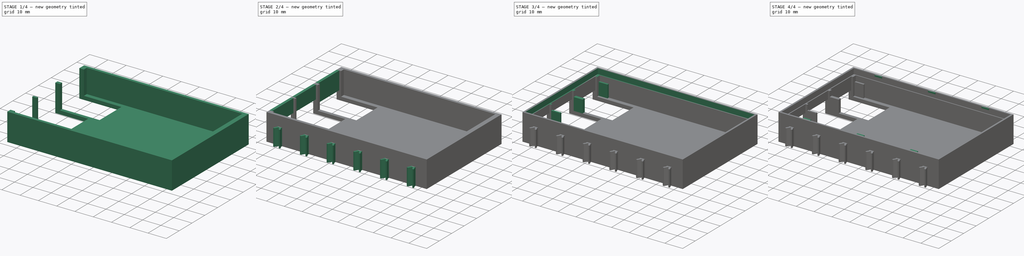
[diagram: build sequence overview — one tinted view per stage of 4, left to right]
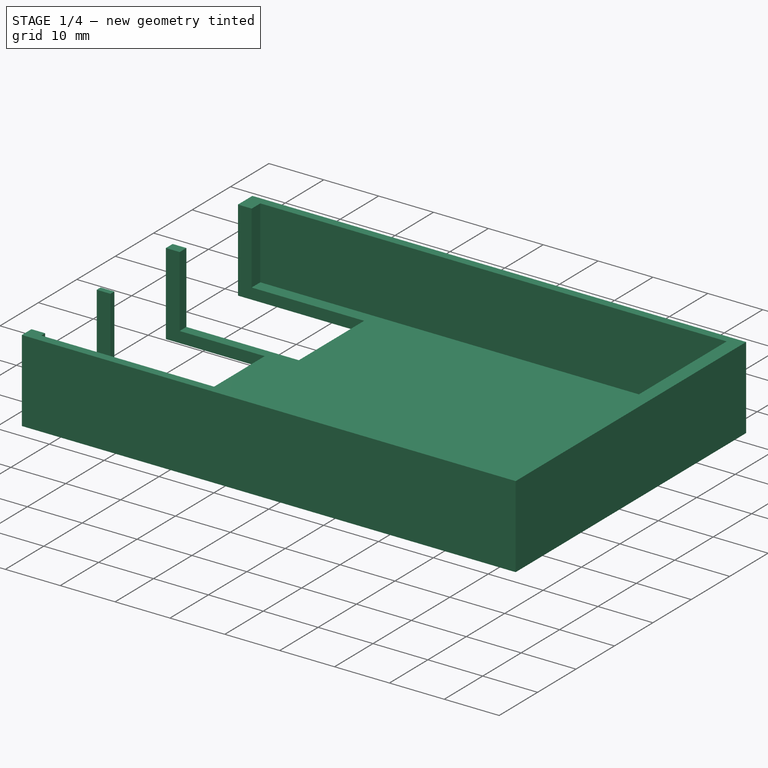
[diagram: stage 1 of 4 — iso view after this stage's code; geometry added in this stage tinted green]
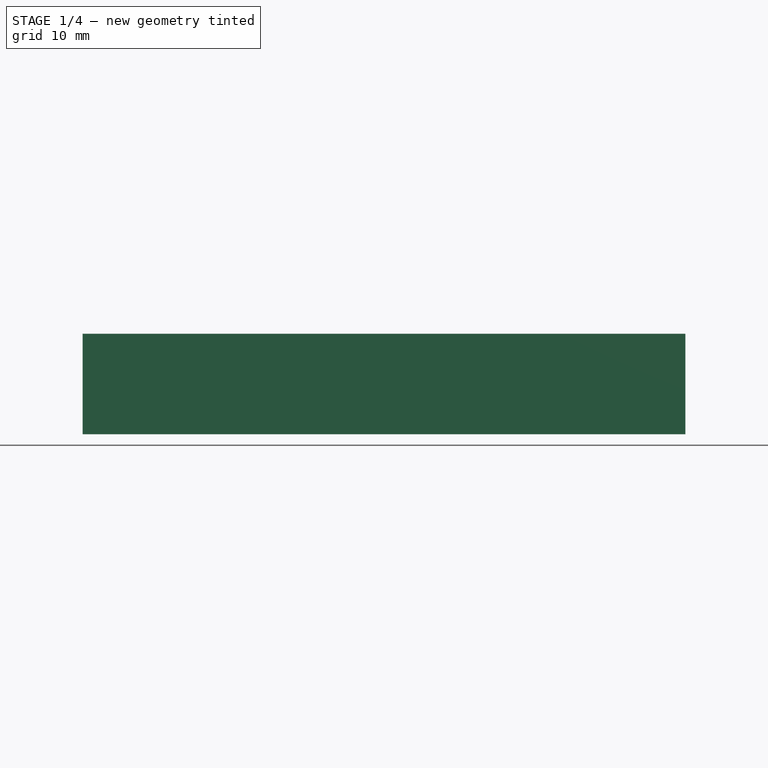
[diagram: stage 1 of 4 — front view after this stage's code; geometry added in this stage tinted green]
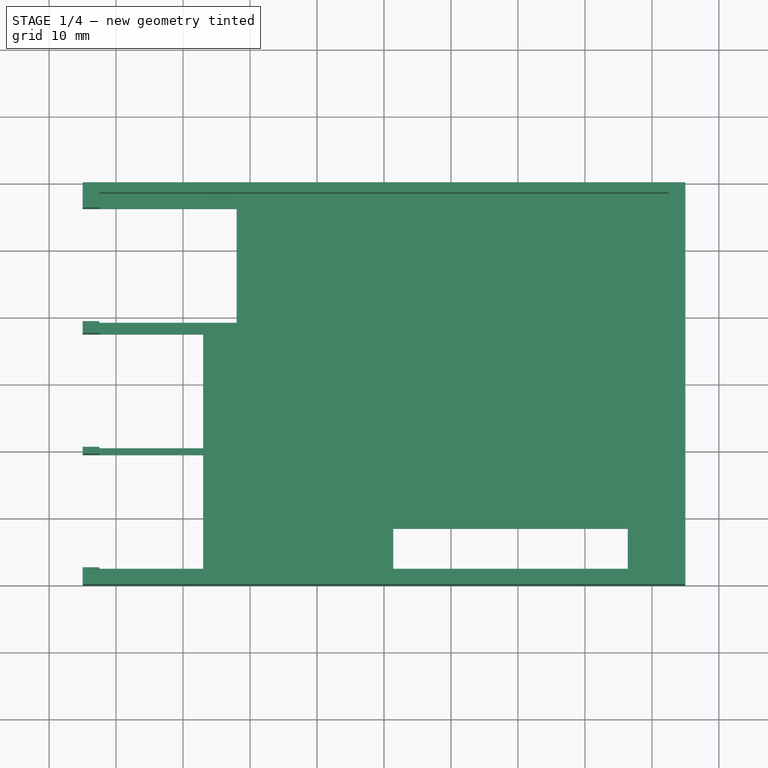
[diagram: stage 1 of 4 — top view after this stage's code; geometry added in this stage tinted green]
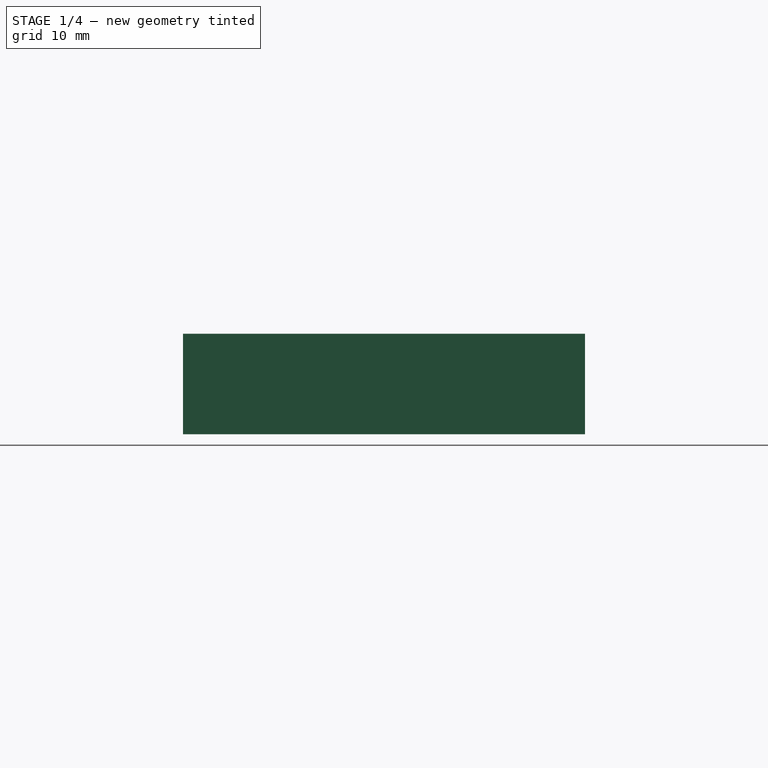
[diagram: stage 1 of 4 — right view after this stage's code; geometry added in this stage tinted green]
FCSTD DOCUMENT  (FreeCAD 0.16R6707 (Git))
Label: display32_bottom
License: All rights reserved
LicenseURL: http://en.wikipedia.org/wiki/All_rights_reserved
objects: Sketcher::SketchObject×9, PartDesign::Pad×7, PartDesign::Pocket×2, PartDesign::Mirrored×1, PartDesign::LinearPattern×1, PartDesign::MultiTransform×1
note: 30 computed .brp shape members not serialized (recipe doc carries the construction recipe); baked Part::Feature solids carry a one-line shape summary decoded from their .brp

FEATURE [Sketcher::SketchObject] Sketch
  sketch-geometry (30):
    g0: LineSegment StartX=-45 StartY=30 StartZ=0 EndX=45 EndY=30 EndZ=0
    g1: LineSegment StartX=45 StartY=30 StartZ=0 EndX=45 EndY=-30 EndZ=0
    g2: LineSegment StartX=45 StartY=-30 StartZ=0 EndX=-45 EndY=-30 EndZ=0
    g3: LineSegment StartX=-45 StartY=-30 StartZ=0 EndX=-45 EndY=-27.5 EndZ=0
    g4: LineSegment StartX=-45 StartY=-27.5 StartZ=0 EndX=-27 EndY=-27.5 EndZ=0
    g5: LineSegment StartX=-27 StartY=-27.5 StartZ=0 EndX=-27 EndY=-10.5 EndZ=0
    g6: LineSegment StartX=-27 StartY=-10.5 StartZ=0 EndX=-45 EndY=-10.5 EndZ=0
    g7: LineSegment StartX=-45 StartY=-10.5 StartZ=0 EndX=-45 EndY=-9.5 EndZ=0
    g8: LineSegment StartX=-45 StartY=-9.5 StartZ=0 EndX=-27 EndY=-9.5 EndZ=0
    g9: LineSegment StartX=-27 StartY=-9.5 StartZ=0 EndX=-27 EndY=7.5 EndZ=0
    g10: LineSegment StartX=-27 StartY=7.5 StartZ=0 EndX=-45 EndY=7.5 EndZ=0
    g11: LineSegment StartX=-45 StartY=7.5 StartZ=0 EndX=-45 EndY=9.25 EndZ=0
    g12: LineSegment StartX=-45 StartY=9.25 StartZ=0 EndX=-22 EndY=9.25 EndZ=0
    g13: LineSegment StartX=-22 StartY=9.25 StartZ=0 EndX=-22 EndY=26.25 EndZ=0
    g14: LineSegment StartX=-22 StartY=26.25 StartZ=0 EndX=-45 EndY=26.25 EndZ=0
    g15: LineSegment StartX=-45 StartY=26.25 StartZ=0 EndX=-45 EndY=30 EndZ=0
    g16: LineSegment [constr] StartX=-45 StartY=26.25 StartZ=0 EndX=-45 EndY=9.25 EndZ=0
    g17: LineSegment [constr] StartX=-27 StartY=-9.5 StartZ=0 EndX=-27 EndY=-10.5 EndZ=0
    g18: LineSegment [constr] StartX=-45 StartY=7.5 StartZ=0 EndX=-45 EndY=-9.5 EndZ=0
    g19: LineSegment [constr] StartX=-45 StartY=-10.5 StartZ=0 EndX=-45 EndY=-27.5 EndZ=0
    g20: GeomPoint [constr] X=-45 Y=-19 Z=0
    g21: GeomPoint [constr] X=-45 Y=-1 Z=0
    g22: GeomPoint [constr] X=-45 Y=17.75 Z=0
    g23: LineSegment StartX=1.39 StartY=-21.5 StartZ=0 EndX=36.39 EndY=-21.5 EndZ=0
    g24: LineSegment StartX=36.39 StartY=-21.5 StartZ=0 EndX=36.39 EndY=-27.5 EndZ=0
    g25: LineSegment StartX=36.39 StartY=-27.5 StartZ=0 EndX=1.39 EndY=-27.5 EndZ=0
    g26: LineSegment StartX=1.39 StartY=-27.5 StartZ=0 EndX=1.39 EndY=-21.5 EndZ=0
    g27: GeomPoint [constr] X=18.89 Y=-27.5 Z=0
    g28: GeomPoint [constr] X=36.39 Y=-24.5 Z=0
    g29: GeomPoint [constr] X=-45 Y=28 Z=0
  constraints (80):
    c: Horizontal(g0)
    c: Coincident(g0,g1)
    c: Vertical(g1)
    c: Coincident(g1,g2)
    c: Horizontal(g2)
    c: Coincident(g2,g3)
    c: Vertical(g3)
    c: Coincident(g3,g4)
    c: Horizontal(g4)
    c: Coincident(g4,g5)
    c: Vertical(g5)
    c: Coincident(g5,g6)
    c: Horizontal(g6)
    c: Coincident(g6,g7)
    c: Coincident(g7,g8)
    c: Horizontal(g8)
    c: Coincident(g8,g9)
    c: Vertical(g9)
    c: Coincident(g9,g10)
    c: Horizontal(g10)
    c: Coincident(g10,g11)
    c: Vertical(g11)
    c: Coincident(g11,g12)
    c: Horizontal(g12)
    c: Coincident(g12,g13)
    c: Vertical(g13)
    c: Coincident(g13,g14)
    c: Horizontal(g14)
    c: Coincident(g14,g15)
    c: Coincident(g15,g0)
    c: Vertical(g15)
    c: Coincident(g16,g14)
    c: Coincident(g16,g11)
    c: Coincident(g17,g8)
    c: Coincident(g17,g5)
    c: Coincident(g18,g10)
    c: Coincident(g18,g7)
    c: Coincident(g19,g6)
    c: Coincident(g19,g3)
    c: Vertical(g19)
    c: Vertical(g18)
    c: Vertical(g16)
    c: Vertical(g7)
    c: Vertical(g17)
    c: DistanceY(g7,g10) = 17
    c: DistanceY(g3,g6) = 17
    c: DistanceY(g11,g14) = 17
    c: DistanceX(g0,g0) = 90
    c: DistanceX(g10,g9) = 18
    c: DistanceX(g14,g13) = 23
    c: PointOnObject(g20,g19)
    c: PointOnObject(g21,g18)
    c: PointOnObject(g22,g16)
    c: Symmetric(g11,g14,g22)
    c: Symmetric(g10,g7,g21)
    c: Symmetric(g6,g3,g20)
    c: DistanceY(g1,g0) = 60
    c: Symmetric(g0,g0,g-2)
    c: Symmetric(g0,g1,g-1)
    c: Coincident(g23,g24)
    c: Coincident(g24,g25)
    c: Coincident(g25,g26)
    c: Coincident(g26,g23)
    c: Horizontal(g23)
    c: Horizontal(g25)
    c: Vertical(g24)
    c: Vertical(g26)
    c: PointOnObject(g27,g25)
    c: PointOnObject(g28,g24)
    c: Symmetric(g25,g24,g27)
    c: Symmetric(g23,g24,g28)
    c: DistanceX(g23,g23) = 35
    c: DistanceY(g25,g23) = 6
    c: DistanceY(g1,g28) = 5.5
    c: DistanceX(g27,g1) = 26.11
    c: PointOnObject(g29,g15)
    c: DistanceY(g29,g0) = 2
    c: DistanceY(g22,g29) = 10.25
    c: DistanceY(g21,g29) = 29
    c: DistanceY(g20,g29) = 47
FEATURE [PartDesign::Pad] Pad
  Length = 2
  Length2 = 100
  Sketch = -> Sketch
  Type = 0
FEATURE [Sketcher::SketchObject] Sketch001
  Placement = pos=(0,0,2) rot=(0,0,1;0rad)
  Support = -> Pad [Face22]
  sketch-geometry (30):
    g0: LineSegment StartX=-45 StartY=30 StartZ=0 EndX=45 EndY=30 EndZ=0
    g1: LineSegment StartX=45 StartY=30 StartZ=0 EndX=45 EndY=-30 EndZ=0
    g2: LineSegment StartX=45 StartY=-30 StartZ=0 EndX=-45 EndY=-30 EndZ=0
    g3: LineSegment StartX=-45 StartY=-30 StartZ=0 EndX=-45 EndY=-27.5 EndZ=0
    g4: LineSegment StartX=-45 StartY=-10.5 StartZ=0 EndX=-45 EndY=-9.5 EndZ=0
    g5: LineSegment StartX=-45 StartY=7.5 StartZ=0 EndX=-45 EndY=9.25 EndZ=0
    g6: LineSegment StartX=-45 StartY=26.25 StartZ=0 EndX=-45 EndY=30 EndZ=0
    g7: LineSegment StartX=-42.5 StartY=28.5 StartZ=0 EndX=42.5 EndY=28.5 EndZ=0
    g8: LineSegment StartX=42.5 StartY=28.5 StartZ=0 EndX=42.5 EndY=-28.5 EndZ=0
    g9: LineSegment StartX=42.5 StartY=-28.5 StartZ=0 EndX=-42.5 EndY=-28.5 EndZ=0
    g10: LineSegment [constr] StartX=-45 StartY=26.25 StartZ=0 EndX=-45 EndY=9.25 EndZ=0
    g11: LineSegment [constr] StartX=-45 StartY=7.5 StartZ=0 EndX=-45 EndY=-9.5 EndZ=0
    g12: LineSegment [constr] StartX=-45 StartY=-9.25 StartZ=0 EndX=-45 EndY=-27.5 EndZ=0
    g13: GeomPoint [constr] X=-45 Y=17.75 Z=0
    g14: GeomPoint [constr] X=-45 Y=-1 Z=0
    g15: GeomPoint [constr] X=-45 Y=-19 Z=0
    g16: LineSegment StartX=-45 StartY=9.25 StartZ=0 EndX=-42.5 EndY=9.25 EndZ=0
    g17: LineSegment StartX=-42.5 StartY=9.25 StartZ=0 EndX=-42.5 EndY=7.5 EndZ=0
    g18: LineSegment StartX=-45 StartY=7.5 StartZ=0 EndX=-42.5 EndY=7.5 EndZ=0
    g19: LineSegment StartX=-45 StartY=-9.5 StartZ=0 EndX=-42.5 EndY=-9.5 EndZ=0
    g20: LineSegment StartX=-42.5 StartY=-9.5 StartZ=0 EndX=-42.5 EndY=-10.5 EndZ=0
    g21: LineSegment StartX=-42.5 StartY=-10.5 StartZ=0 EndX=-45 EndY=-10.5 EndZ=0
    g22: LineSegment StartX=-42.5 StartY=-28.5 StartZ=0 EndX=-42.5 EndY=-27.5 EndZ=0
    g23: LineSegment StartX=-42.5 StartY=-27.5 StartZ=0 EndX=-45 EndY=-27.5 EndZ=0
    g24: LineSegment [constr] StartX=-42.5 StartY=-9.5 StartZ=0 EndX=-42.5 EndY=7.5 EndZ=0
    g25: LineSegment [constr] StartX=-42.5 StartY=9.25 StartZ=0 EndX=-42.5 EndY=26.25 EndZ=0
    g26: LineSegment [constr] StartX=-42.5 StartY=-10.5 StartZ=0 EndX=-42.5 EndY=-27.5 EndZ=0
    g27: LineSegment StartX=-42.5 StartY=28.5 StartZ=0 EndX=-42.5 EndY=26.25 EndZ=0
    g28: LineSegment StartX=-42.5 StartY=26.25 StartZ=0 EndX=-45 EndY=26.25 EndZ=0
    g29: GeomPoint [constr] X=-45 Y=28 Z=0
  constraints (79):
    c: Horizontal(g0)
    c: Coincident(g0,g1)
    c: Vertical(g1)
    c: Coincident(g1,g2)
    c: Horizontal(g2)
    c: Coincident(g2,g3)
    c: Vertical(g3)
    c: Vertical(g5)
    c: Coincident(g6,g0)
    c: Horizontal(g7)
    c: Coincident(g7,g8)
    c: Vertical(g8)
    c: Coincident(g8,g9)
    c: Horizontal(g9)
    c: Coincident(g10,g5)
    c: Vertical(g10)
    c: Coincident(g11,g4)
    c: Vertical(g11)
    c: Coincident(g12,g3)
    c: Vertical(g12)
    c: PointOnObject(g13,g10)
    c: PointOnObject(g14,g11)
    c: PointOnObject(g15,g12)
    c: Vertical(g4)
    c: Vertical(g6)
    c: DistanceY(g3,g4) = 17
    c: DistanceY(g4,g5) = 17
    c: DistanceY(g5,g6) = 17
    c: Symmetric(g5,g6,g13)
    c: Symmetric(g4,g5,g14)
    c: Symmetric(g3,g4,g15)
    c: Symmetric(g0,g0,g-2)
    c: DistanceX(g0,g0) = 90
    c: Symmetric(g1,g0,g-1)
    c: DistanceY(g1,g0) = 60
    c: DistanceY(g7,g0) = 1.5
    c: DistanceX(g7,g0) = 2.5
    c: DistanceY(g1,g8) = 1.5
    c: Coincident(g16,g5)
    c: Horizontal(g16)
    c: Coincident(g17,g16)
    c: Vertical(g17)
    c: Coincident(g18,g5)
    c: Coincident(g18,g17)
    c: Horizontal(g18)
    c: Coincident(g4,g19)
    c: Horizontal(g19)
    c: Coincident(g19,g20)
    c: Vertical(g20)
    c: Coincident(g20,g21)
    c: Coincident(g21,g4)
    c: Horizontal(g21)
    c: Vertical(g22)
    c: Coincident(g23,g3)
    c: Horizontal(g23)
    c: Coincident(g24,g19)
    c: Coincident(g24,g17)
    c: Vertical(g24)
    c: Coincident(g25,g16)
    c: Vertical(g25)
    c: Coincident(g26,g20)
    c: Coincident(g26,g22)
    c: Vertical(g26)
    c: Coincident(g23,g22)
    c: Coincident(g22,g9)
    c: DistanceX(g3,g22) = 2.5
    c: Coincident(g7,g27)
    c: Coincident(g27,g25)
    c: Coincident(g27,g28)
    c: Coincident(g28,g6)
    c: Vertical(g27)
    c: Horizontal(g28)
    c: Coincident(g10,g6)
    c: Coincident(g11,g5)
    c: PointOnObject(g29,g6)
    c: DistanceY(g29,g0) = 2
    c: DistanceY(g13,g29) = 10.25
    c: DistanceY(g14,g29) = 29
    c: DistanceY(g15,g29) = 47
FEATURE [PartDesign::Pad] Pad001
  Length = 13
  Length2 = 100
  Sketch = -> Sketch001
  Type = 0
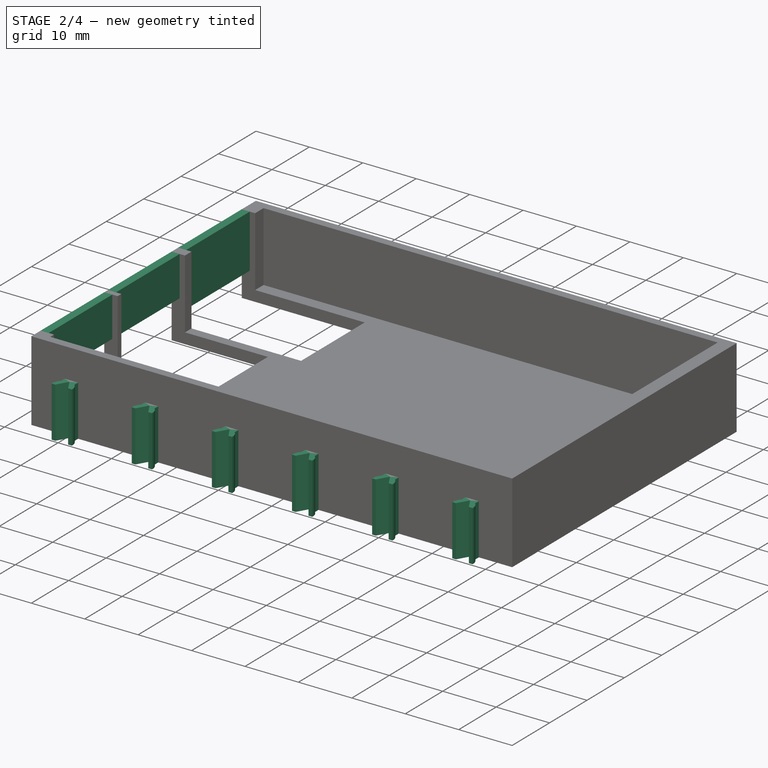
[diagram: stage 2 of 4 — iso view after this stage's code; geometry added in this stage tinted green]
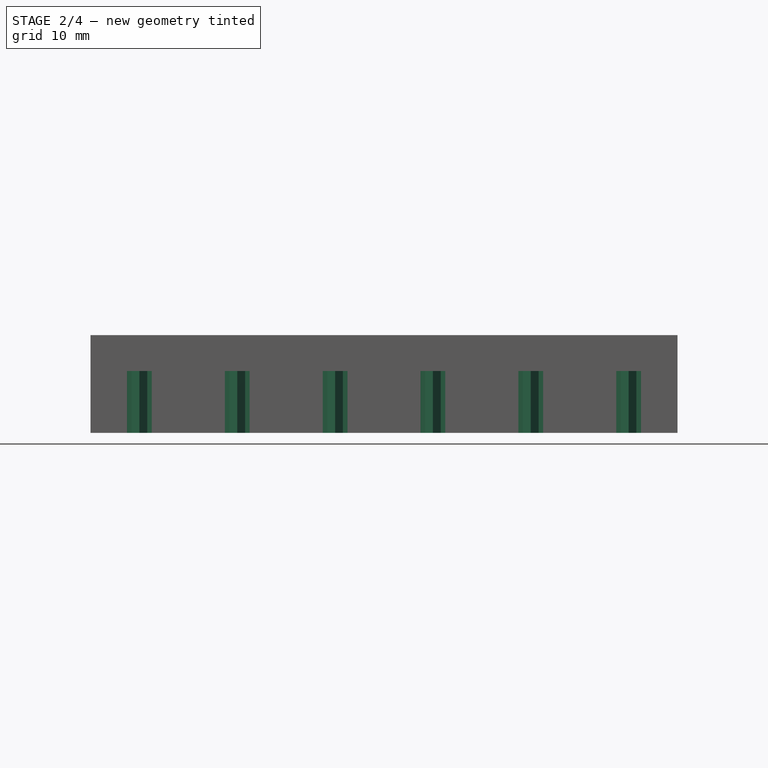
[diagram: stage 2 of 4 — front view after this stage's code; geometry added in this stage tinted green]
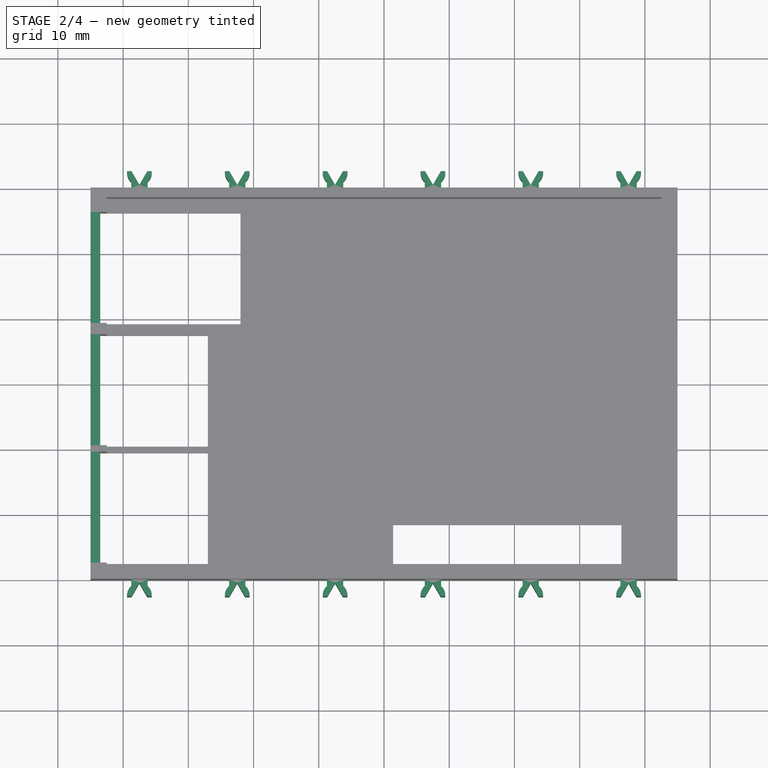
[diagram: stage 2 of 4 — top view after this stage's code; geometry added in this stage tinted green]
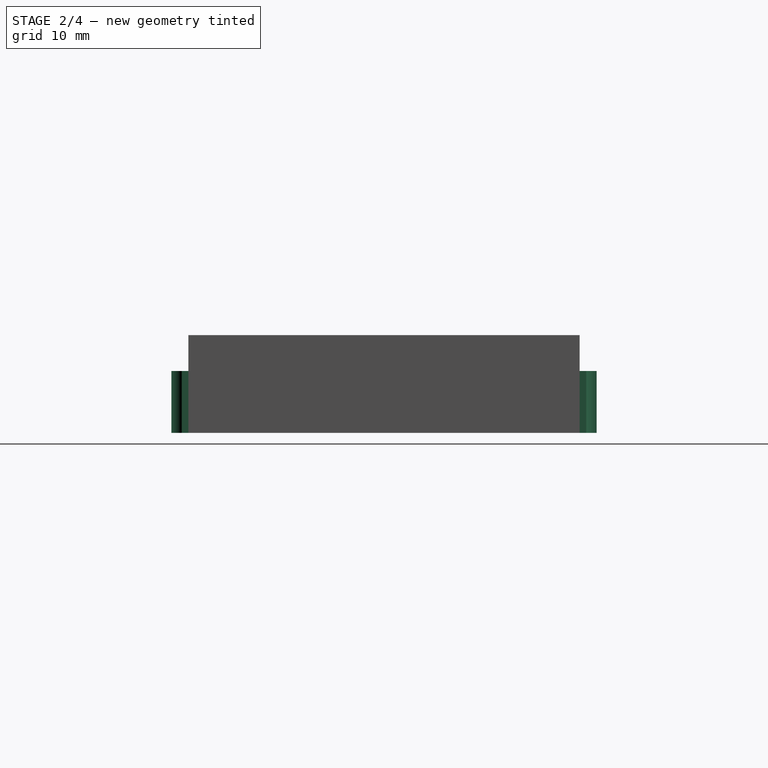
[diagram: stage 2 of 4 — right view after this stage's code; geometry added in this stage tinted green]
FEATURE [Sketcher::SketchObject] Sketch002
  Placement = pos=(-45,0,0) rot=(0.57735,-0.57735,-0.57735;2.0944rad)
  Support = -> Pad001 [Face35]
  sketch-geometry (18):
    g0: LineSegment StartX=-26.25 StartY=15 StartZ=0 EndX=-9.25 EndY=15 EndZ=0
    g1: LineSegment StartX=-9.25 StartY=15 StartZ=0 EndX=-9.25 EndY=5 EndZ=0
    g2: LineSegment StartX=-9.25 StartY=5 StartZ=0 EndX=-26.25 EndY=5 EndZ=0
    g3: LineSegment StartX=-26.25 StartY=5 StartZ=0 EndX=-26.25 EndY=15 EndZ=0
    g4: GeomPoint [constr] X=-17.75 Y=5 Z=0
    g5: LineSegment StartX=-7.5 StartY=15 StartZ=0 EndX=9.5 EndY=15 EndZ=0
    g6: LineSegment StartX=9.5 StartY=15 StartZ=0 EndX=9.5 EndY=7.5 EndZ=0
    g7: LineSegment StartX=9.5 StartY=7.5 StartZ=0 EndX=-7.5 EndY=7.5 EndZ=0
    g8: LineSegment StartX=-7.5 StartY=7.5 StartZ=0 EndX=-7.5 EndY=15 EndZ=0
    g9: LineSegment StartX=10.5 StartY=15 StartZ=0 EndX=27.5 EndY=15 EndZ=0
    g10: LineSegment StartX=27.5 StartY=15 StartZ=0 EndX=27.5 EndY=7.5 EndZ=0
    g11: LineSegment StartX=27.5 StartY=7.5 StartZ=0 EndX=10.5 EndY=7.5 EndZ=0
    g12: LineSegment StartX=10.5 StartY=7.5 StartZ=0 EndX=10.5 EndY=15 EndZ=0
    g13: GeomPoint [constr] X=1 Y=7.5 Z=0
    g14: GeomPoint [constr] X=19 Y=7.5 Z=0
    g15: LineSegment [constr] StartX=9.5 StartY=7.5 StartZ=0 EndX=10.5 EndY=7.5 EndZ=0
    g16: LineSegment [constr] StartX=9.5 StartY=15 StartZ=0 EndX=10.5 EndY=15 EndZ=0
    g17: LineSegment [constr] StartX=-9.25 StartY=15 StartZ=0 EndX=-7.5 EndY=15 EndZ=0
  constraints (48):
    c: Coincident(g0,g1)
    c: Coincident(g1,g2)
    c: Coincident(g2,g3)
    c: Coincident(g3,g0)
    c: Horizontal(g0)
    c: Horizontal(g2)
    c: Vertical(g1)
    c: Vertical(g3)
    c: PointOnObject(g4,g2)
    c: DistanceX(g4,g-1) = 17.75
    c: DistanceY(g-1,g0) = 15
    c: DistanceX(g0,g0) = 17
    c: DistanceY(g-1,g1) = 5
    c: Symmetric(g2,g1,g4)
    c: Coincident(g5,g6)
    c: Coincident(g6,g7)
    c: Coincident(g7,g8)
    c: Coincident(g8,g5)
    c: Horizontal(g5)
    c: Horizontal(g7)
    c: Vertical(g6)
    c: Vertical(g8)
    c: Coincident(g9,g10)
    c: Coincident(g10,g11)
    c: Coincident(g11,g12)
    c: Coincident(g12,g9)
    c: Horizontal(g9)
    c: Horizontal(g11)
    c: Vertical(g10)
    c: Vertical(g12)
    c: PointOnObject(g13,g7)
    c: PointOnObject(g14,g11)
    c: Symmetric(g7,g6,g13)
    c: Symmetric(g11,g10,g14)
    c: DistanceX(g5,g5) = 17
    c: DistanceX(g9,g9) = 17
    c: Coincident(g15,g6)
    c: Coincident(g15,g11)
    c: Horizontal(g15)
    c: Coincident(g16,g5)
    c: Coincident(g16,g9)
    c: Horizontal(g16)
    c: DistanceX(g-1,g14) = 19
    c: Coincident(g17,g0)
    c: Coincident(g17,g5)
    c: Horizontal(g17)
    c: DistanceY(g-1,g7) = 7.5
    c: DistanceX(g-1,g13) = 1
FEATURE [PartDesign::Pad] Pad002
  Length = 1.5
  Length2 = 100
  Reversed = true
  Sketch = -> Sketch002
  Type = 0
FEATURE [Sketcher::SketchObject] Sketch003
  Placement = pos=(0,0,0) rot=(1,0,0;3.14159rad)
  Support = -> Pad002 [Face1]
  sketch-geometry (12):
    g0: LineSegment StartX=36.25 StartY=30 StartZ=0 EndX=38.75 EndY=30 EndZ=0
    g1: LineSegment StartX=36.25 StartY=30 StartZ=0 EndX=36.25 EndY=31 EndZ=0
    g2: LineSegment StartX=38.75 StartY=30 StartZ=0 EndX=38.75 EndY=31 EndZ=0
    g3: ArcOfCircle CenterX=37.5 CenterY=32.4309 CenterZ=0 NormalX=0 NormalY=0 NormalZ=1 Radius=1.9 StartAngle=5.43041 EndAngle=6.3723
    g4: GeomPoint [constr] X=37.5 Y=30 Z=0
    g5: LineSegment StartX=35.6075 StartY=32.6 StartZ=0 EndX=36.2975 EndY=32.6 EndZ=0
    g6: LineSegment StartX=36.2975 StartY=32.6 StartZ=0 EndX=37.5 EndY=30.5309 EndZ=0
    g7: LineSegment StartX=37.5 StartY=30.5309 StartZ=0 EndX=38.7025 EndY=32.6 EndZ=0
    g8: LineSegment StartX=38.7025 StartY=32.6 StartZ=0 EndX=39.3925 EndY=32.6 EndZ=0
    g9: LineSegment [constr] StartX=36.2975 StartY=32.6 StartZ=0 EndX=38.7025 EndY=32.6 EndZ=0
    g10: ArcOfCircle CenterX=37.5 CenterY=32.4309 CenterZ=0 NormalX=0 NormalY=0 NormalZ=1 Radius=1.9 StartAngle=3.05248 EndAngle=3.99437
    g11: LineSegment [constr] StartX=37.5 StartY=32.4309 StartZ=0 EndX=37.5 EndY=30.5309 EndZ=0
  constraints (33):
    c: Horizontal(g0)
    c: DistanceX(g0,g0) = 2.5
    c: Coincident(g1,g0)
    c: Vertical(g1)
    c: Coincident(g2,g0)
    c: Vertical(g2)
    c: Coincident(g3,g2)
    c: Symmetric(g0,g0,g4)
    c: Horizontal(g5)
    c: Coincident(g6,g5)
    c: Coincident(g7,g6)
    c: Coincident(g8,g7)
    c: Coincident(g8,g3)
    c: Horizontal(g8)
    c: DistanceY(g0,g3) = 2.6
    c: Coincident(g9,g5)
    c: Coincident(g9,g7)
    c: Horizontal(g9)
    c: DistanceY(g0,g2) = 1
    c: DistanceX(g5,g5) = 0.69
    c: DistanceX(g7,g3) = 0.69
    c: DistanceY(g-1,g4) = 30
    c: Coincident(g10,g3)
    c: Coincident(g10,g1)
    c: Coincident(g10,g5)
    c: Equal(g10,g3)
    c: DistanceY(g6,g3) = 1.9
    c: Coincident(g11,g3)
    c: Coincident(g11,g6)
    c: Vertical(g11)
    c: DistanceY(g0,g1) = 1
    c: Radius(g3) = 1.9
    c: DistanceX(g-1,g4) = 37.5
FEATURE [PartDesign::Pad] Pad003
  Length = 9.5
  Length2 = 100
  Reversed = true
  Sketch = -> Sketch003
  Type = 0
FEATURE [PartDesign::Mirrored] Mirrored
  MirrorPlane = -> Sketch003 [H_Axis]
FEATURE [PartDesign::LinearPattern] LinearPattern
  Direction = -> Sketch003 [H_Axis]
  Length = 75
  Occurrences = 6
  Reversed = true
FEATURE [PartDesign::MultiTransform] MultiTransform
  Originals = -> [Pad003]
  Transformations = -> [Mirrored,LinearPattern]
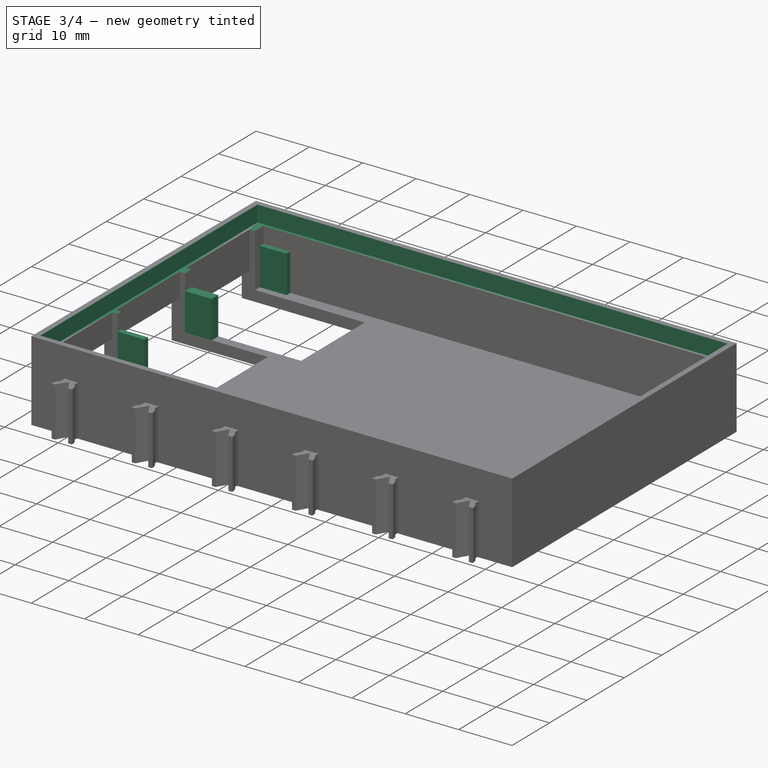
[diagram: stage 3 of 4 — iso view after this stage's code; geometry added in this stage tinted green]
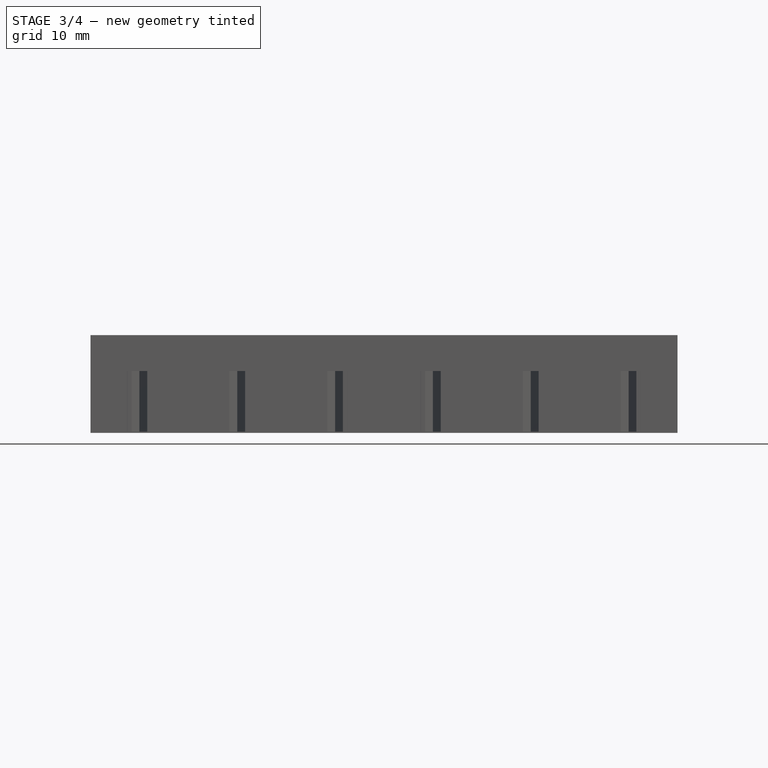
[diagram: stage 3 of 4 — front view after this stage's code; geometry added in this stage tinted green]
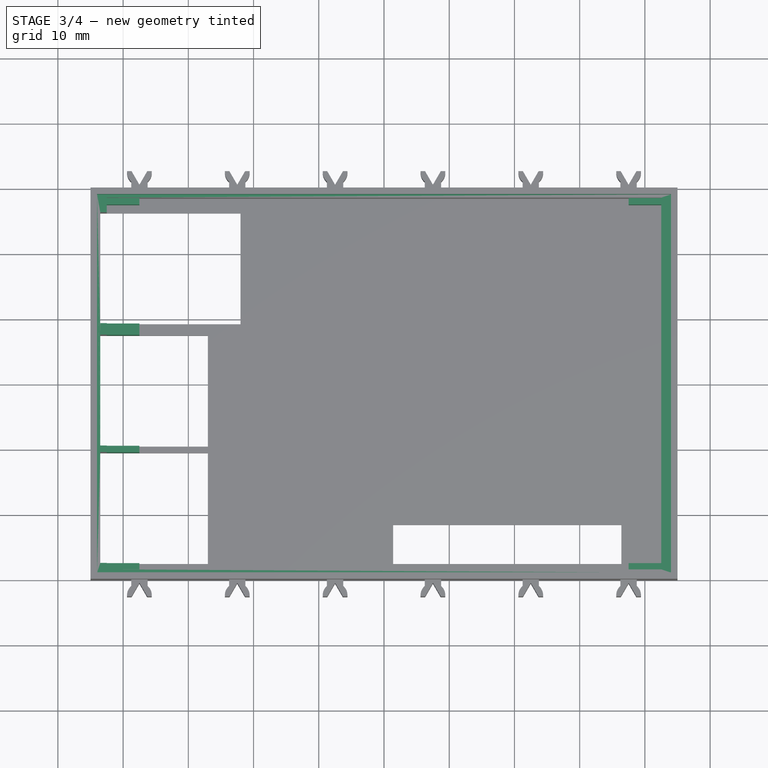
[diagram: stage 3 of 4 — top view after this stage's code; geometry added in this stage tinted green]
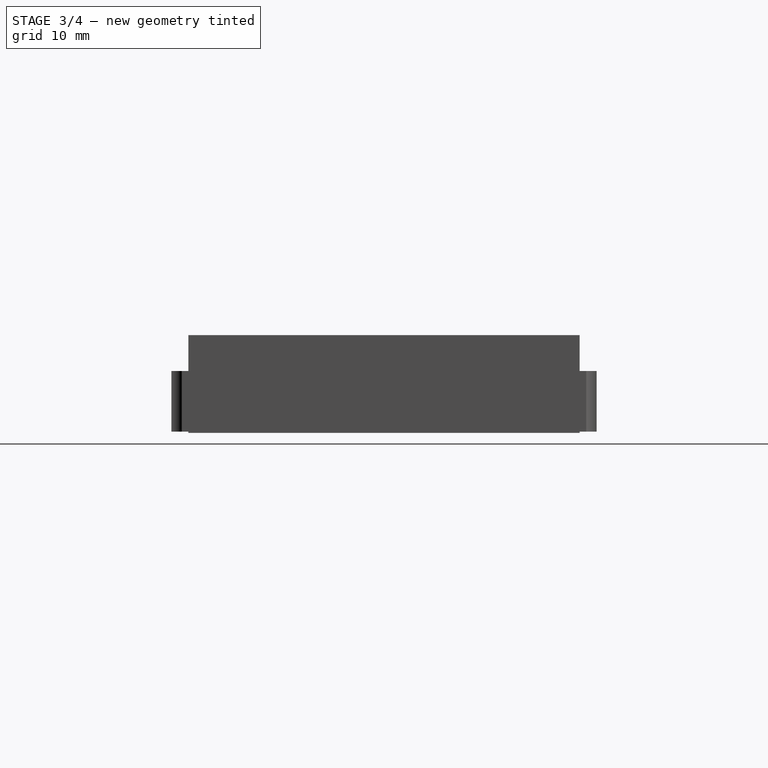
[diagram: stage 3 of 4 — right view after this stage's code; geometry added in this stage tinted green]
FEATURE [Sketcher::SketchObject] Sketch004
  Placement = pos=(0,0,0) rot=(1,0,0;3.14159rad)
  Support = -> MultiTransform [Face3]
  sketch-geometry (10):
    g0: LineSegment StartX=-45 StartY=33 StartZ=0 EndX=45 EndY=33 EndZ=0
    g1: LineSegment StartX=45 StartY=33 StartZ=0 EndX=45 EndY=30 EndZ=0
    g2: LineSegment StartX=45 StartY=30 StartZ=0 EndX=-45 EndY=30 EndZ=0
    g3: LineSegment StartX=-45 StartY=30 StartZ=0 EndX=-45 EndY=33 EndZ=0
    g4: LineSegment StartX=-45 StartY=-30 StartZ=0 EndX=45 EndY=-30 EndZ=0
    g5: LineSegment StartX=45 StartY=-30 StartZ=0 EndX=45 EndY=-33 EndZ=0
    g6: LineSegment StartX=45 StartY=-33 StartZ=0 EndX=-45 EndY=-33 EndZ=0
    g7: LineSegment StartX=-45 StartY=-33 StartZ=0 EndX=-45 EndY=-30 EndZ=0
    g8: LineSegment [constr] StartX=-45 StartY=30 StartZ=0 EndX=-45 EndY=-30 EndZ=0
    g9: LineSegment [constr] StartX=45 StartY=30 StartZ=0 EndX=45 EndY=-30 EndZ=0
  constraints (28):
    c: Coincident(g0,g1)
    c: Coincident(g1,g2)
    c: Coincident(g2,g3)
    c: Coincident(g3,g0)
    c: Horizontal(g0)
    c: Horizontal(g2)
    c: Vertical(g1)
    c: Vertical(g3)
    c: Coincident(g4,g5)
    c: Coincident(g5,g6)
    c: Coincident(g6,g7)
    c: Coincident(g7,g4)
    c: Horizontal(g4)
    c: Horizontal(g6)
    c: Vertical(g5)
    c: Vertical(g7)
    c: Coincident(g8,g2)
    c: Coincident(g8,g4)
    c: Vertical(g8)
    c: Coincident(g9,g1)
    c: Coincident(g9,g4)
    c: Vertical(g9)
    c: Symmetric(g2,g1,g-2)
    c: DistanceX(g0,g0) = 90
    c: Symmetric(g4,g1,g-1)
    c: DistanceY(g4,g1) = 60
    c: Symmetric(g0,g5,g-1)
    c: DistanceY(g2,g0) = 3
FEATURE [PartDesign::Pocket] Pocket
  Length = 0.2
  Sketch = -> Sketch004
  Type = 0
FEATURE [Sketcher::SketchObject] Sketch005
  Placement = pos=(0,0,15) rot=(0,0,1;0rad)
  Support = -> Pocket [Face52]
  sketch-geometry (4):
    g0: LineSegment StartX=-44 StartY=29 StartZ=0 EndX=44 EndY=29 EndZ=0
    g1: LineSegment StartX=44 StartY=29 StartZ=0 EndX=44 EndY=-29 EndZ=0
    g2: LineSegment StartX=44 StartY=-29 StartZ=0 EndX=-44 EndY=-29 EndZ=0
    g3: LineSegment StartX=-44 StartY=-29 StartZ=0 EndX=-44 EndY=29 EndZ=0
  constraints (12):
    c: Coincident(g0,g1)
    c: Coincident(g1,g2)
    c: Coincident(g2,g3)
    c: Coincident(g3,g0)
    c: Horizontal(g0)
    c: Horizontal(g2)
    c: Vertical(g1)
    c: Vertical(g3)
    c: Symmetric(g0,g0,g-2)
    c: Symmetric(g0,g2,g-1)
    c: DistanceX(g0,g0) = 88
    c: DistanceY(g2,g0) = 58
FEATURE [PartDesign::Pocket] Pocket001
  Length = 3
  Sketch = -> Sketch005
  Type = 0
FEATURE [Sketcher::SketchObject] Sketch006
  Placement = pos=(0,0,2) rot=(0,0,1;0rad)
  Support = -> Pocket001 [Face8]
  sketch-geometry (31):
    g0: LineSegment StartX=42.5 StartY=28.5 StartZ=0 EndX=42.5 EndY=27.5 EndZ=0
    g1: LineSegment StartX=-42.5 StartY=27.5 StartZ=0 EndX=-42.5 EndY=28.5 EndZ=0
    g2: LineSegment StartX=42.5 StartY=-27.5 StartZ=0 EndX=42.5 EndY=-28.5 EndZ=0
    g3: LineSegment StartX=-42.5 StartY=-28.5 StartZ=0 EndX=-42.5 EndY=-27.5 EndZ=0
    g4: LineSegment [constr] StartX=-42.5 StartY=27.5 StartZ=0 EndX=-42.5 EndY=-27.5 EndZ=0
    g5: LineSegment [constr] StartX=42.5 StartY=27.5 StartZ=0 EndX=42.5 EndY=-27.5 EndZ=0
    g6: LineSegment StartX=-42.5 StartY=28.5 StartZ=0 EndX=-37.5 EndY=28.5 EndZ=0
    g7: LineSegment StartX=-37.5 StartY=28.5 StartZ=0 EndX=-37.5 EndY=27.5 EndZ=0
    g8: LineSegment StartX=-37.5 StartY=27.5 StartZ=0 EndX=-42.5 EndY=27.5 EndZ=0
    g9: LineSegment StartX=42.5 StartY=28.5 StartZ=0 EndX=37.5 EndY=28.5 EndZ=0
    g10: LineSegment StartX=37.5 StartY=28.5 StartZ=0 EndX=37.5 EndY=27.5 EndZ=0
    g11: LineSegment StartX=37.5 StartY=27.5 StartZ=0 EndX=42.5 EndY=27.5 EndZ=0
    g12: LineSegment StartX=-42.5 StartY=-27.5 StartZ=0 EndX=-37.5 EndY=-27.5 EndZ=0
    g13: LineSegment StartX=-37.5 StartY=-27.5 StartZ=0 EndX=-37.5 EndY=-28.5 EndZ=0
    g14: LineSegment StartX=-37.5 StartY=-28.5 StartZ=0 EndX=-42.5 EndY=-28.5 EndZ=0
    g15: LineSegment StartX=42.5 StartY=-27.5 StartZ=0 EndX=37.5 EndY=-27.5 EndZ=0
    g16: LineSegment StartX=37.5 StartY=-27.5 StartZ=0 EndX=37.5 EndY=-28.5 EndZ=0
    g17: LineSegment StartX=37.5 StartY=-28.5 StartZ=0 EndX=42.5 EndY=-28.5 EndZ=0
    g18: LineSegment [constr] StartX=-37.5 StartY=-27.5 StartZ=0 EndX=-37.5 EndY=27.5 EndZ=0
    g19: LineSegment [constr] StartX=37.5 StartY=27.5 StartZ=0 EndX=37.5 EndY=-27.5 EndZ=0
    g20: LineSegment [constr] StartX=-37.5 StartY=27.5 StartZ=0 EndX=37.5 EndY=27.5 EndZ=0
    g21: LineSegment [constr] StartX=-37.5 StartY=28.5 StartZ=0 EndX=37.5 EndY=28.5 EndZ=0
    g22: LineSegment [constr] StartX=-37.5 StartY=-28.5 StartZ=0 EndX=37.5 EndY=-28.5 EndZ=0
    g23: LineSegment StartX=-37.5 StartY=9.25 StartZ=0 EndX=-42.5 EndY=9.25 EndZ=0
    g24: LineSegment StartX=-42.5 StartY=9.25 StartZ=0 EndX=-42.5 EndY=7.5 EndZ=0
    g25: LineSegment StartX=-42.5 StartY=7.5 StartZ=0 EndX=-37.5 EndY=7.5 EndZ=0
    g26: LineSegment StartX=-37.5 StartY=7.5 StartZ=0 EndX=-37.5 EndY=9.25 EndZ=0
    g27: LineSegment StartX=-42.5 StartY=-9.5 StartZ=0 EndX=-37.5 EndY=-9.5 EndZ=0
    g28: LineSegment StartX=-37.5 StartY=-9.5 StartZ=0 EndX=-37.5 EndY=-10.5 EndZ=0
    g29: LineSegment StartX=-37.5 StartY=-10.5 StartZ=0 EndX=-42.5 EndY=-10.5 EndZ=0
    g30: LineSegment StartX=-42.5 StartY=-10.5 StartZ=0 EndX=-42.5 EndY=-9.5 EndZ=0
  constraints (84):
    c: Vertical(g0)
    c: Vertical(g1)
    c: Vertical(g2)
    c: Vertical(g3)
    c: Vertical(g4)
    c: Vertical(g5)
    c: Coincident(g5,g0)
    c: Symmetric(g1,g0,g-2)
    c: Symmetric(g0,g2,g-1)
    c: Symmetric(g0,g2,g-1)
    c: DistanceX(g1,g0) = 85
    c: DistanceY(g2,g0) = 57
    c: DistanceY(g0,g0) = 1
    c: Coincident(g1,g6)
    c: Horizontal(g6)
    c: Coincident(g6,g7)
    c: Coincident(g7,g8)
    c: Coincident(g8,g1)
    c: Horizontal(g8)
    c: Coincident(g0,g9)
    c: Horizontal(g9)
    c: Coincident(g9,g10)
    c: Vertical(g10)
    c: Coincident(g10,g11)
    c: Coincident(g11,g0)
    c: Horizontal(g11)
    c: Coincident(g3,g12)
    c: Horizontal(g12)
    c: Coincident(g12,g13)
    c: Coincident(g13,g14)
    c: Coincident(g14,g3)
    c: Horizontal(g14)
    c: Coincident(g2,g15)
    c: Horizontal(g15)
    c: Coincident(g15,g16)
    c: Vertical(g16)
    c: Coincident(g16,g17)
    c: Coincident(g17,g2)
    c: Horizontal(g17)
    c: Coincident(g18,g12)
    c: Coincident(g18,g7)
    c: Vertical(g18)
    c: Coincident(g19,g10)
    c: Coincident(g19,g15)
    c: Vertical(g19)
    c: Vertical(g7)
    c: Vertical(g13)
    c: Coincident(g4,g3)
    c: Coincident(g4,g1)
    c: Symmetric(g3,g1,g-1)
    c: Coincident(g20,g7)
    c: Coincident(g20,g10)
    c: Coincident(g21,g6)
    c: Coincident(g21,g9)
    c: Horizontal(g20)
    c: Symmetric(g6,g9,g-2)
    c: Coincident(g22,g13)
    c: Coincident(g22,g16)
    c: Horizontal(g22)
    c: DistanceX(g9,g0) = 5
    c: Coincident(g23,g24)
    c: Coincident(g24,g25)
    c: Coincident(g25,g26)
    c: Coincident(g26,g23)
    c: Horizontal(g23)
    c: Horizontal(g25)
    c: Vertical(g24)
    c: Vertical(g26)
    c: PointOnObject(g23,g18)
    c: PointOnObject(g24,g4)
    c: Coincident(g27,g28)
    c: Coincident(g28,g29)
    c: Coincident(g29,g30)
    c: Coincident(g30,g27)
    c: Horizontal(g27)
    c: Horizontal(g29)
    c: Vertical(g28)
    c: Vertical(g30)
    c: PointOnObject(g27,g4)
    c: DistanceY(g3,g29) = 17
    c: DistanceY(g27,g24) = 17
    c: PointOnObject(g28,g18)
    c: DistanceY(g28,g27) = 1
    c: DistanceY(g25,g23) = 1.75
FEATURE [PartDesign::Pad] Pad004
  Length = 7
  Length2 = 100
  Sketch = -> Sketch006
  Type = 0
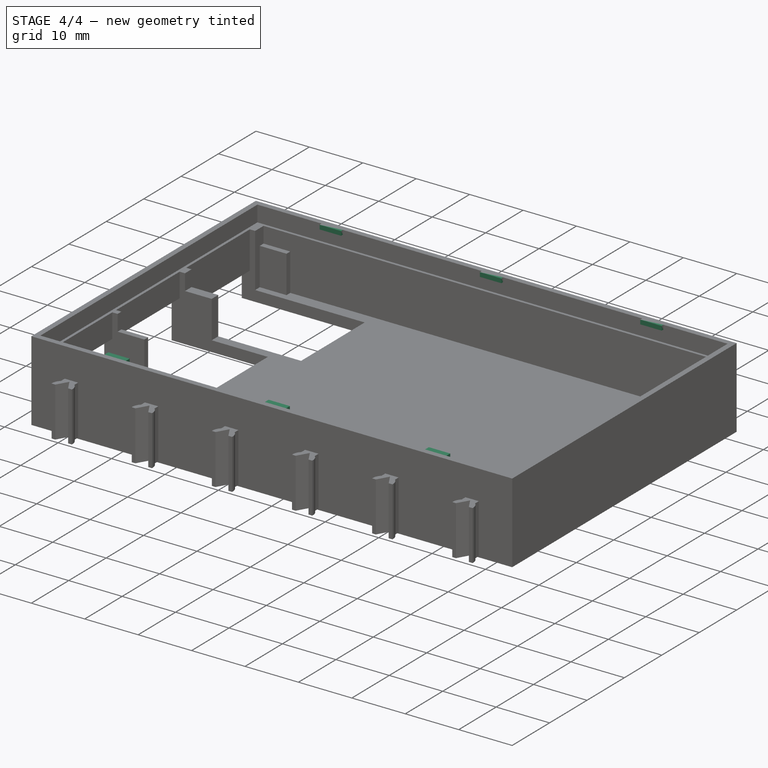
[diagram: stage 4 of 4 — iso view after this stage's code; geometry added in this stage tinted green]
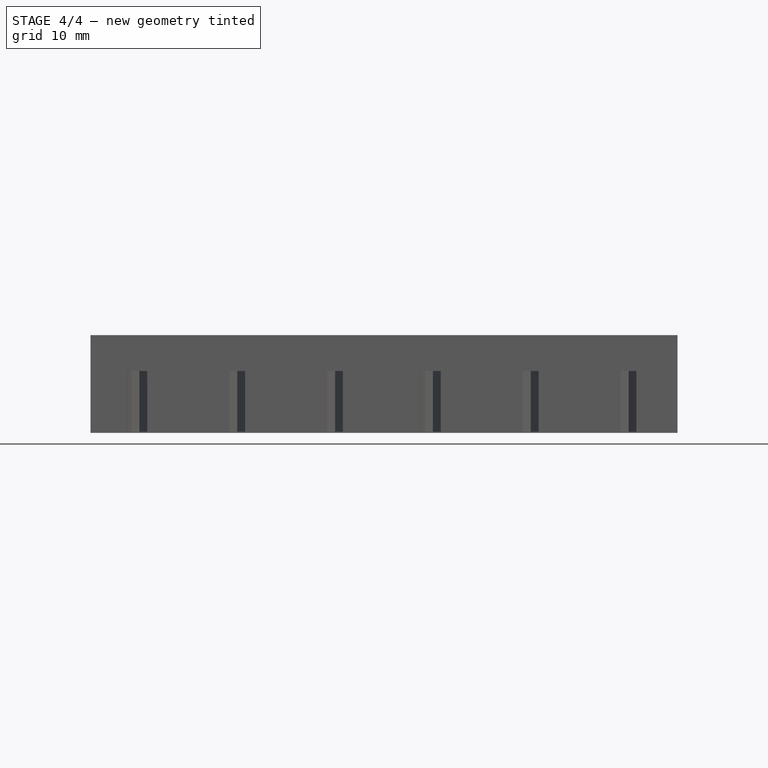
[diagram: stage 4 of 4 — front view after this stage's code; geometry added in this stage tinted green]
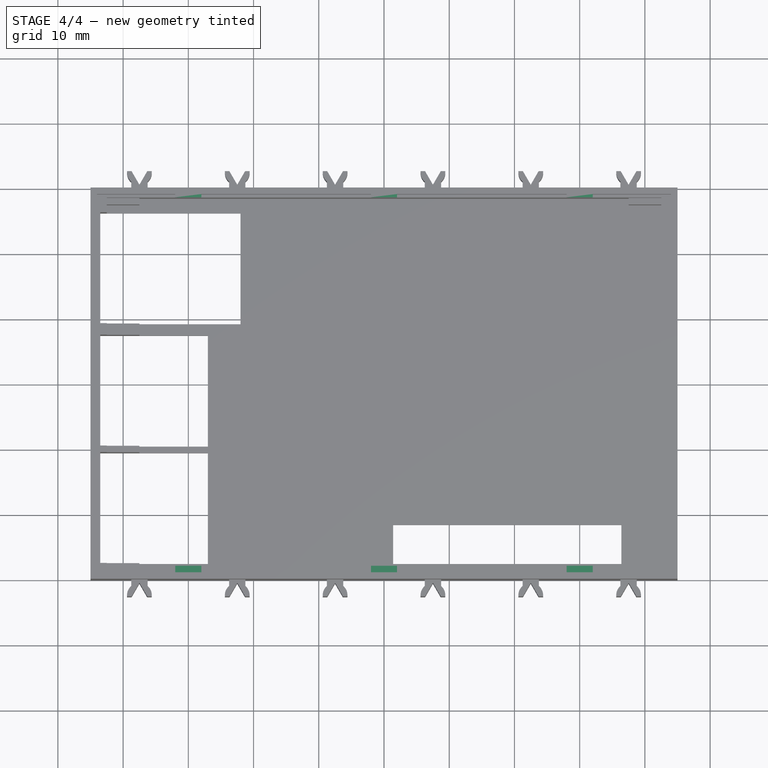
[diagram: stage 4 of 4 — top view after this stage's code; geometry added in this stage tinted green]
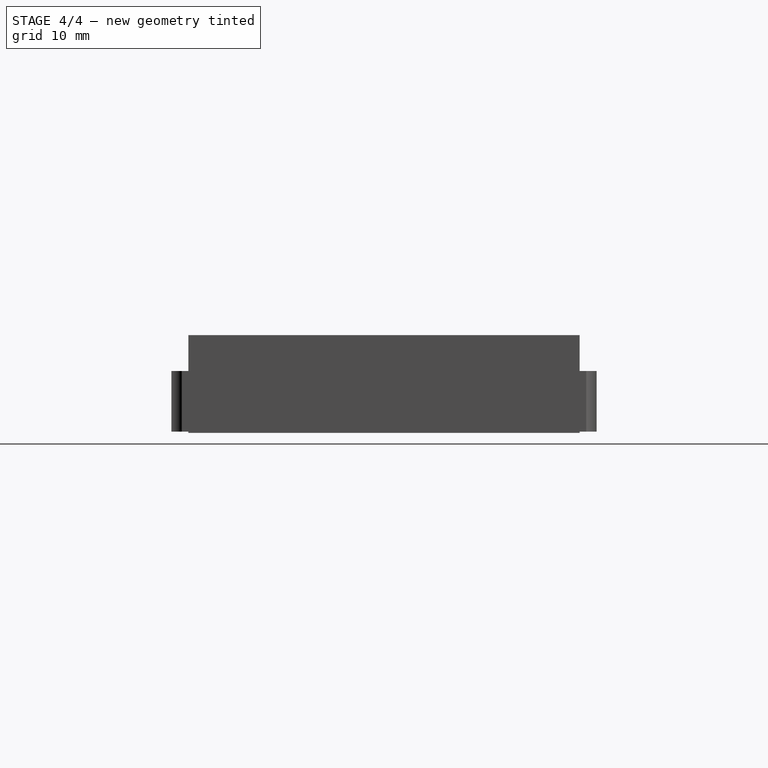
[diagram: stage 4 of 4 — right view after this stage's code; geometry added in this stage tinted green]
FEATURE [Sketcher::SketchObject] Sketch007
  Placement = pos=(0,29,0) rot=(1,0,0;1.5708rad)
  Support = -> Pad004 [Face132]
  sketch-geometry (16):
    g0: LineSegment StartX=-32 StartY=15 StartZ=0 EndX=-28 EndY=15 EndZ=0
    g1: LineSegment StartX=-28 StartY=15 StartZ=0 EndX=-28 EndY=14.2 EndZ=0
    g2: LineSegment StartX=-28 StartY=14.2 StartZ=0 EndX=-32 EndY=14.2 EndZ=0
    g3: LineSegment StartX=-32 StartY=14.2 StartZ=0 EndX=-32 EndY=15 EndZ=0
    g4: LineSegment StartX=-2 StartY=15 StartZ=0 EndX=2 EndY=15 EndZ=0
    g5: LineSegment StartX=2 StartY=15 StartZ=0 EndX=2 EndY=14.2 EndZ=0
    g6: LineSegment StartX=2 StartY=14.2 StartZ=0 EndX=-2 EndY=14.2 EndZ=0
    g7: LineSegment StartX=-2 StartY=14.2 StartZ=0 EndX=-2 EndY=15 EndZ=0
    g8: LineSegment StartX=28 StartY=15 StartZ=0 EndX=32 EndY=15 EndZ=0
    g9: LineSegment StartX=32 StartY=15 StartZ=0 EndX=32 EndY=14.2 EndZ=0
    g10: LineSegment StartX=32 StartY=14.2 StartZ=0 EndX=28 EndY=14.2 EndZ=0
    g11: LineSegment StartX=28 StartY=14.2 StartZ=0 EndX=28 EndY=15 EndZ=0
    g12: LineSegment [constr] StartX=-28 StartY=15 StartZ=0 EndX=-2 EndY=15 EndZ=0
    g13: LineSegment [constr] StartX=2 StartY=15 StartZ=0 EndX=28 EndY=15 EndZ=0
    g14: LineSegment [constr] StartX=-28 StartY=14.2 StartZ=0 EndX=-2 EndY=14.2 EndZ=0
    g15: LineSegment [constr] StartX=2 StartY=14.2 StartZ=0 EndX=28 EndY=14.2 EndZ=0
  constraints (43):
    c: Coincident(g0,g1)
    c: Coincident(g1,g2)
    c: Coincident(g2,g3)
    c: Coincident(g3,g0)
    c: Horizontal(g0)
    c: Horizontal(g2)
    c: Vertical(g1)
    c: Vertical(g3)
    c: Coincident(g4,g5)
    c: Coincident(g5,g6)
    c: Coincident(g6,g7)
    c: Coincident(g7,g4)
    c: Horizontal(g4)
    c: Horizontal(g6)
    c: Vertical(g5)
    c: Vertical(g7)
    c: Coincident(g8,g9)
    c: Coincident(g9,g10)
    c: Coincident(g10,g11)
    c: Coincident(g11,g8)
    c: Horizontal(g8)
    c: Horizontal(g10)
    c: Vertical(g9)
    c: Vertical(g11)
    c: Coincident(g12,g0)
    c: Coincident(g12,g4)
    c: Horizontal(g12)
    c: Coincident(g13,g4)
    c: Coincident(g13,g8)
    c: Coincident(g14,g1)
    c: Coincident(g14,g6)
    c: Horizontal(g14)
    c: Coincident(g15,g5)
    c: Coincident(g15,g10)
    c: Horizontal(g15)
    c: DistanceX(g0,g0) = 4
    c: DistanceX(g4,g4) = 4
    c: DistanceX(g0,g4) = 26
    c: Symmetric(g0,g8,g-2)
    c: Symmetric(g0,g8,g-2)
    c: Symmetric(g4,g4,g-2)
    c: DistanceY(g2,g0) = 0.8
    c: DistanceY(g-1,g4) = 15
FEATURE [PartDesign::Pad] Pad005
  Length = 0.5
  Length2 = 100
  Sketch = -> Sketch007
  Type = 0
FEATURE [Sketcher::SketchObject] Sketch008
  Placement = pos=(0,-29,0) rot=(0,0.707107,0.707107;3.14159rad)
  Support = -> Pad005 [Face134]
  sketch-geometry (16):
    g0: LineSegment StartX=-32 StartY=15 StartZ=0 EndX=-28 EndY=15 EndZ=0
    g1: LineSegment StartX=-28 StartY=15 StartZ=0 EndX=-28 EndY=14.2 EndZ=0
    g2: LineSegment StartX=-28 StartY=14.2 StartZ=0 EndX=-32 EndY=14.2 EndZ=0
    g3: LineSegment StartX=-32 StartY=14.2 StartZ=0 EndX=-32 EndY=15 EndZ=0
    g4: LineSegment StartX=-2 StartY=15 StartZ=0 EndX=2 EndY=15 EndZ=0
    g5: LineSegment StartX=2 StartY=15 StartZ=0 EndX=2 EndY=14.2 EndZ=0
    g6: LineSegment StartX=2 StartY=14.2 StartZ=0 EndX=-2 EndY=14.2 EndZ=0
    g7: LineSegment StartX=-2 StartY=14.2 StartZ=0 EndX=-2 EndY=15 EndZ=0
    g8: LineSegment StartX=28 StartY=15 StartZ=0 EndX=32 EndY=15 EndZ=0
    g9: LineSegment StartX=32 StartY=15 StartZ=0 EndX=32 EndY=14.2 EndZ=0
    g10: LineSegment StartX=32 StartY=14.2 StartZ=0 EndX=28 EndY=14.2 EndZ=0
    g11: LineSegment StartX=28 StartY=14.2 StartZ=0 EndX=28 EndY=15 EndZ=0
    g12: LineSegment [constr] StartX=-28 StartY=15 StartZ=0 EndX=-2 EndY=15 EndZ=0
    g13: LineSegment [constr] StartX=-28 StartY=14.2 StartZ=0 EndX=-2 EndY=14.2 EndZ=0
    g14: LineSegment [constr] StartX=2 StartY=15 StartZ=0 EndX=28 EndY=15 EndZ=0
    g15: LineSegment [constr] StartX=2 StartY=14.2 StartZ=0 EndX=28 EndY=14.2 EndZ=0
  constraints (43):
    c: Coincident(g0,g1)
    c: Coincident(g1,g2)
    c: Coincident(g2,g3)
    c: Coincident(g3,g0)
    c: Horizontal(g0)
    c: Horizontal(g2)
    c: Vertical(g1)
    c: Vertical(g3)
    c: Coincident(g4,g5)
    c: Coincident(g5,g6)
    c: Coincident(g6,g7)
    c: Coincident(g7,g4)
    c: Horizontal(g6)
    c: Vertical(g5)
    c: Vertical(g7)
    c: Coincident(g8,g9)
    c: Coincident(g9,g10)
    c: Coincident(g10,g11)
    c: Coincident(g11,g8)
    c: Horizontal(g8)
    c: Horizontal(g10)
    c: Vertical(g9)
    c: Vertical(g11)
    c: Coincident(g12,g0)
    c: Coincident(g12,g4)
    c: Horizontal(g12)
    c: Coincident(g13,g1)
    c: Coincident(g13,g6)
    c: Horizontal(g13)
    c: Coincident(g14,g4)
    c: Coincident(g14,g8)
    c: Horizontal(g14)
    c: Coincident(g15,g5)
    c: Coincident(g15,g10)
    c: Horizontal(g15)
    c: DistanceX(g0,g0) = 4
    c: DistanceX(g0,g4) = 26
    c: DistanceX(g4,g4) = 4
    c: Symmetric(g4,g4,g-2)
    c: Symmetric(g0,g8,g-2)
    c: Symmetric(g0,g8,g-2)
    c: DistanceY(g9,g8) = 0.8
    c: DistanceY(g-1,g8) = 15
FEATURE [PartDesign::Pad] Pad006
  Length = 1
  Length2 = 100
  Sketch = -> Sketch008
  Type = 0
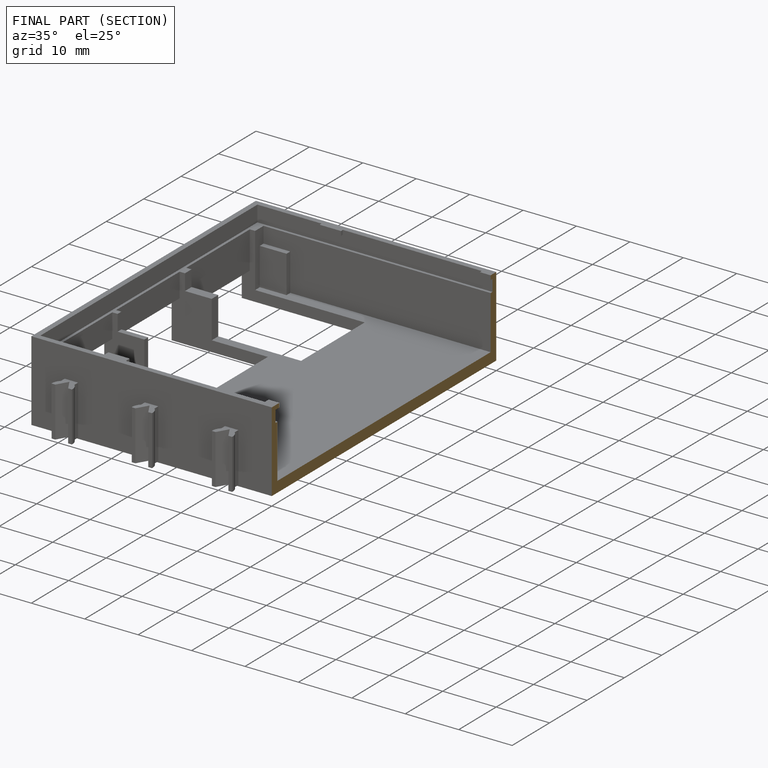
[diagram: finished part — half-section view (interior)]
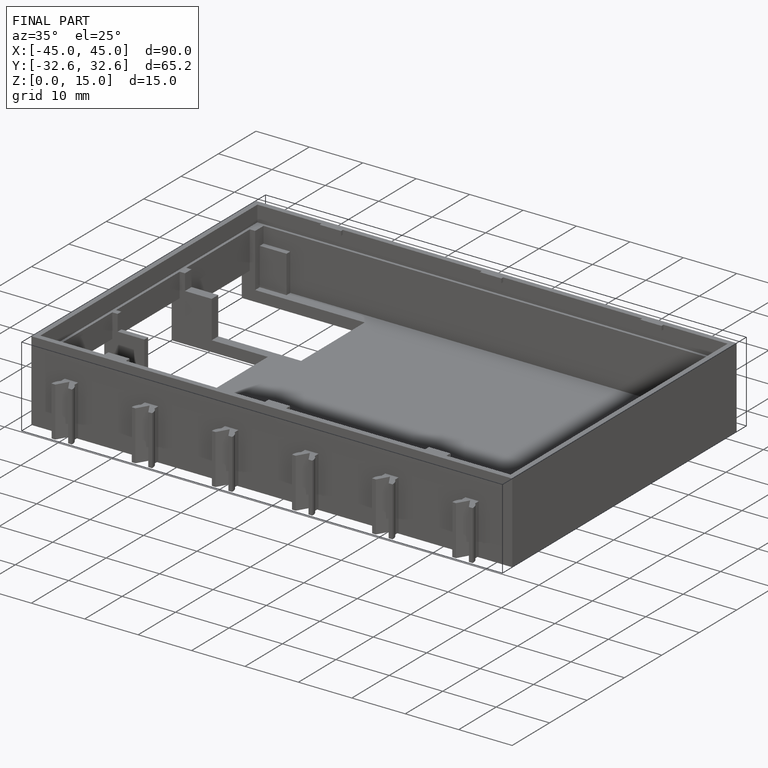
[diagram: finished part — iso view with bounding-box wireframe]
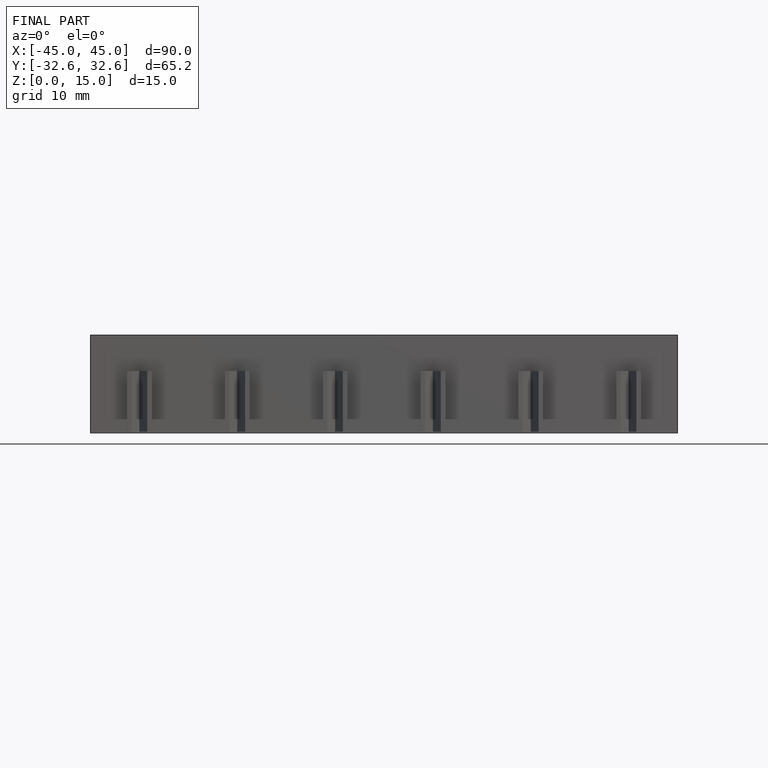
[diagram: finished part — front view with bounding-box wireframe]
